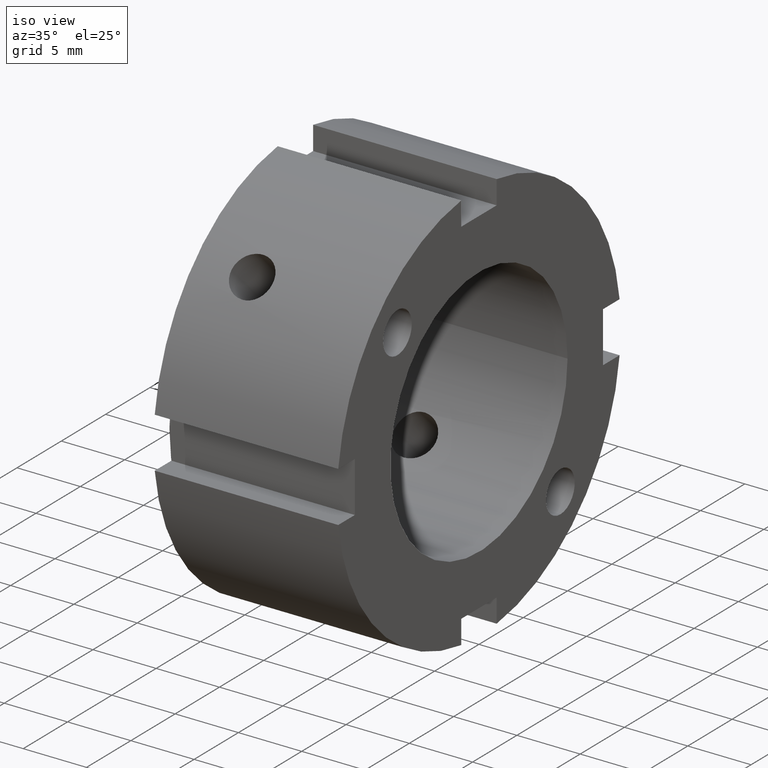
[diagram: clean part render]
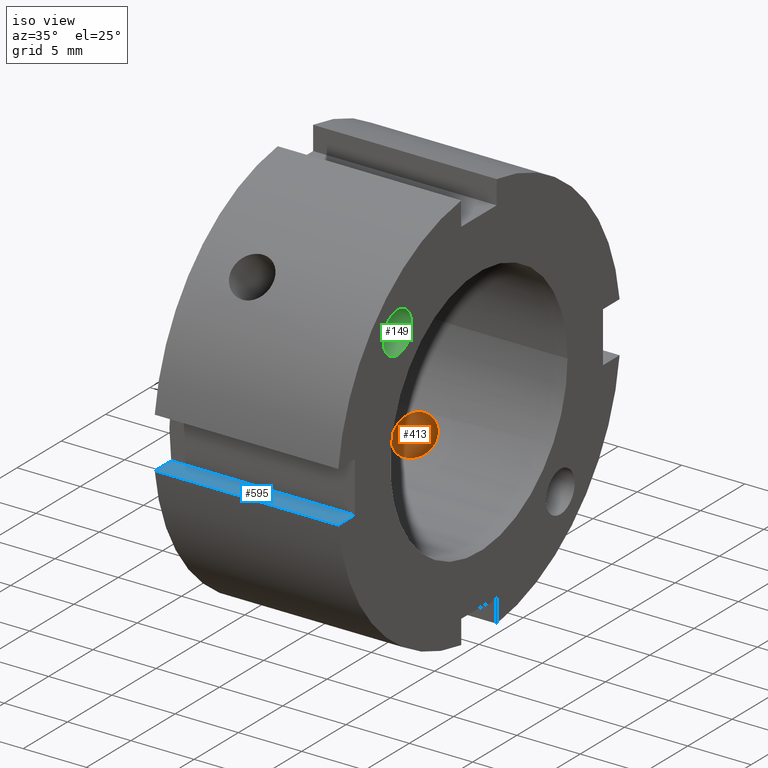
[diagram: same view with three faces highlighted in distinct colors, each labeled with its STEP entity id]
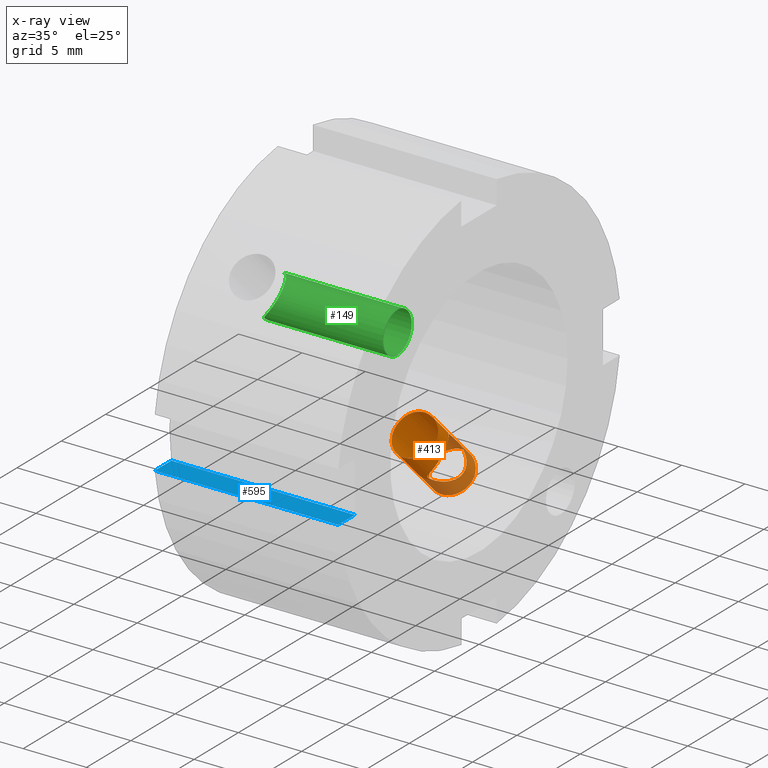
[diagram: x-ray of the same camera — body ghosted, the three highlighted faces saturated]
A machine part, iso view with three faces highlighted in distinct colors.
The next image is the same camera in x-ray (body ghosted, the three faces saturated) — at least one of them is partly hidden behind the body in this view.
Their STEP definitions:

[orange] entity #413 — the highlighted cylindrical surface (bore or boss wall) has radius 1.65 mm, axis along (0, -0.7071, 0.7071).
#246=CARTESIAN_POINT('',(5.307991883009919,10.338608247728512,-8.046168063121723));
#247=VERTEX_POINT('',#246);
#248=CARTESIAN_POINT('',(5.307991883009919,10.338608247728512,-8.046168063121723));
#249=CARTESIAN_POINT('',(5.307991883009919,10.290342137769326,-7.997901953162538));
#250=CARTESIAN_POINT('',(5.328608906915764,10.248867421248955,-7.961860960137659));
#251=CARTESIAN_POINT('',(5.379645951331562,10.167811954966764,-7.896666365945285));
#252=CARTESIAN_POINT('',(5.411230953491391,10.128496317576708,-7.868101955752572));
#253=CARTESIAN_POINT('',(5.515285602255861,10.006061582691961,-7.786979145157567));
#254=CARTESIAN_POINT('',(5.596034957619269,9.920186188864102,-7.740332786636991));
#255=CARTESIAN_POINT('',(5.850594408036052,9.63688703357367,-7.620070827574702));
#256=CARTESIAN_POINT('',(6.032903735948267,9.417864689002517,-7.571388155425116));
#257=CARTESIAN_POINT('',(6.312430421401476,9.008532071238733,-7.571388155425116));
#258=CARTESIAN_POINT('',(6.433314181594366,8.800213257153491,-7.6047462166001));
#259=CARTESIAN_POINT('',(6.560102959408969,8.498345314220897,-7.723498291297575));
#260=CARTESIAN_POINT('',(6.593607110198377,8.399313119949044,-7.774244746791153));
#261=CARTESIAN_POINT('',(6.638553059776974,8.212582298400816,-7.896225506185688));
#262=CARTESIAN_POINT('',(6.649999999999996,8.124881513565644,-7.967454612677805));
#263=CARTESIAN_POINT('',(6.649999999999996,7.967454612677813,-8.124881513565633));
#264=CARTESIAN_POINT('',(6.638553059776976,7.896225506185694,-8.212582298400807));
#265=CARTESIAN_POINT('',(6.59360711019838,7.774244746791156,-8.39931311994904));
#266=CARTESIAN_POINT('',(6.560102959408971,7.723498291297576,-8.49834531422089));
#267=CARTESIAN_POINT('',(6.433314181594367,7.6047462166001,-8.800213257153487));
#268=CARTESIAN_POINT('',(6.312430421401477,7.571388155425121,-9.008532071238731));
#269=CARTESIAN_POINT('',(6.032903735948269,7.571388155425121,-9.417864689002517));
#270=CARTESIAN_POINT('',(5.850594408036052,7.6200708275747,-9.63688703357367));
#271=CARTESIAN_POINT('',(5.596034957619269,7.74033278663699,-9.920186188864104));
#272=CARTESIAN_POINT('',(5.515285602255862,7.786979145157567,-10.006061582691963));
#273=CARTESIAN_POINT('',(5.411230953491396,7.868101955752572,-10.128496317576714));
#274=CARTESIAN_POINT('',(5.379645951331557,7.896666365945285,-10.167811954966764));
#275=CARTESIAN_POINT('',(5.32860890691576,7.961860960137659,-10.248867421248955));
#276=CARTESIAN_POINT('',(5.307991883009919,7.99790195316254,-10.290342137769326));
#277=CARTESIAN_POINT('',(5.307991883009919,8.094434173080908,-10.386874357687695));
#278=CARTESIAN_POINT('',(5.328608906915761,8.135908889601282,-10.422915350712579));
#279=CARTESIAN_POINT('',(5.379645951331562,8.216964355883473,-10.48810994490495));
#280=CARTESIAN_POINT('',(5.411230953491395,8.256279993273527,-10.516674355097662));
#281=CARTESIAN_POINT('',(5.515285602255863,8.378714728158275,-10.597797165692667));
#282=CARTESIAN_POINT('',(5.596034957619269,8.464590121986133,-10.644443524213244));
#283=CARTESIAN_POINT('',(5.850594408036052,8.747889277276567,-10.764705483275534));
#284=CARTESIAN_POINT('',(6.032903735948269,8.966911621847718,-10.81338815542512));
#285=CARTESIAN_POINT('',(6.312430421401476,9.376244239611504,-10.81338815542512));
#286=CARTESIAN_POINT('',(6.433314181594366,9.584563053696746,-10.780030094250135));
#287=CARTESIAN_POINT('',(6.560102959408971,9.886430996629342,-10.661278019552661));
#288=CARTESIAN_POINT('',(6.59360711019838,9.985463190901191,-10.61053156405908));
#289=CARTESIAN_POINT('',(6.638553059776977,10.172194012449422,-10.488550804664543));
#290=CARTESIAN_POINT('',(6.649999999999996,10.259894797284597,-10.417321698172426));
#291=CARTESIAN_POINT('',(6.649999999999996,10.417321698172426,-10.259894797284597));
#292=CARTESIAN_POINT('',(6.638553059776976,10.488550804664545,-10.172194012449424));
#293=CARTESIAN_POINT('',(6.593607110198379,10.610531564059082,-9.985463190901193));
#294=CARTESIAN_POINT('',(6.560102959408969,10.661278019552661,-9.88643099662934));
#295=CARTESIAN_POINT('',(6.433314181594364,10.780030094250137,-9.584563053696744));
#296=CARTESIAN_POINT('',(6.312430421401475,10.813388155425123,-9.376244239611502));
#297=CARTESIAN_POINT('',(6.032903735948265,10.813388155425123,-8.966911621847718));
#298=CARTESIAN_POINT('',(5.85059440803605,10.764705483275534,-8.747889277276567));
#299=CARTESIAN_POINT('',(5.596034957619269,10.644443524213241,-8.464590121986133));
#300=CARTESIAN_POINT('',(5.515285602255861,10.597797165692667,-8.378714728158274));
#301=CARTESIAN_POINT('',(5.411230953491392,10.516674355097662,-8.256279993273523));
#302=CARTESIAN_POINT('',(5.379645951331553,10.488109944904949,-8.216964355883471));
#303=CARTESIAN_POINT('',(5.328608906915758,10.422915350712575,-8.135908889601282));
#304=CARTESIAN_POINT('',(5.307991883009919,10.386874357687695,-8.094434173080908));
#305=CARTESIAN_POINT('',(5.307991883009919,10.338608247728512,-8.046168063121723));
#306=B_SPLINE_CURVE_WITH_KNOTS('',3,(#248,#249,#250,#251,#252,#253,#254,#255,#256,#257,#258,#259,#260,#261,#262,#263,#264,#265,#266,#267,#268,#269,#270,#271,#272,#273,#274,#275,#276,#277,#278,#279,#280,#281,#282,#283,#284,#285,#286,#287,#288,#289,#290,#291,#292,#293,#294,#295,#296,#297,#298,#299,#300,#301,#302,#303,#304,#305),.UNSPECIFIED.,.T.,.U.,(4,2,2,2,2,2,2,2,2,2,2,2,2,2,2,2,2,2,2,2,2,2,2,2,2,2,2,2,4),(0.0,0.020477576192181,0.040955152384362,0.081910304768724,0.163820609537448,0.230611187032827,0.264006475780517,0.297401764528207,0.330797053275897,0.364192342023587,0.430982919518967,0.512893224287691,0.553848376672053,0.574325952864234,0.594803529056415,0.615281105248596,0.635758681440777,0.676713833825139,0.758624138593863,0.825414716089243,0.858810004836933,0.892205293584623,0.925600582332313,0.958995871080003,1.025786448575383,1.107696753344106,1.148651905728468,1.169129481920649,1.18960705811283),.UNSPECIFIED.);
#307=EDGE_CURVE('',#247,#247,#306,.T.);
#323=CARTESIAN_POINT('',(4.999999999999996,33.473870406632095,-33.473870406632102));
#324=DIRECTION('',(0.0,-0.707106781186547,0.707106781186548));
#325=DIRECTION('',(1.0,0.0,0.0));
#326=AXIS2_PLACEMENT_3D('',#323,#324,#325);
#327=CYLINDRICAL_SURFACE('',#326,1.65);
#328=CARTESIAN_POINT('',(4.999999999999996,10.086662189659544,-12.420114567575148));
#329=VERTEX_POINT('',#328);
#330=CARTESIAN_POINT('',(4.999999999999995,10.086662189659542,-12.420114567575149));
#331=CARTESIAN_POINT('',(5.207336340367745,10.086662189659542,-12.420114567575149));
#332=CARTESIAN_POINT('',(5.428391306349065,10.119143696572163,-12.393953701340735));
#333=CARTESIAN_POINT('',(5.834873222145586,10.24964325502153,-12.286251284043519));
#334=CARTESIAN_POINT('',(6.020312800601859,10.347489254358727,-12.204549053884694));
#335=CARTESIAN_POINT('',(6.313139013345861,10.569687810686009,-12.012628808731058));
#336=CARTESIAN_POINT('',(6.440099224362882,10.708866685158767,-11.889556167077913));
#337=CARTESIAN_POINT('',(6.60853378446261,11.007648989030363,-11.613485061084404));
#338=CARTESIAN_POINT('',(6.649999999999996,11.167100131445411,-11.460316866524103));
#339=CARTESIAN_POINT('',(6.649999999999996,11.460316866524105,-11.167100131445409));
#340=CARTESIAN_POINT('',(6.608533784462606,11.6134850610844,-11.007648989030361));
#341=CARTESIAN_POINT('',(6.440099224362875,11.889556167077913,-10.708866685158764));
#342=CARTESIAN_POINT('',(6.313139013345861,12.01262880873106,-10.569687810686004));
#343=CARTESIAN_POINT('',(6.020312800601858,12.204549053884698,-10.347489254358724));
#344=CARTESIAN_POINT('',(5.83487322214558,12.286251284043519,-10.249643255021537));
#345=CARTESIAN_POINT('',(5.428391306349061,12.393953701340735,-10.11914369657217));
#346=CARTESIAN_POINT('',(5.207336340367746,12.420114567575151,-10.086662189659542));
#347=CARTESIAN_POINT('',(4.792663659632245,12.420114567575151,-10.086662189659542));
#348=CARTESIAN_POINT('',(4.57160869365093,12.393953701340735,-10.11914369657217));
#349=CARTESIAN_POINT('',(4.16512677785441,12.286251284043519,-10.249643255021537));
#350=CARTESIAN_POINT('',(3.979687199398133,12.204549053884698,-10.347489254358724));
#351=CARTESIAN_POINT('',(3.686860986654131,12.01262880873106,-10.569687810686004));
#352=CARTESIAN_POINT('',(3.559900775637115,11.889556167077913,-10.708866685158764));
#353=CARTESIAN_POINT('',(3.391466215537384,11.6134850610844,-11.007648989030361));
#354=CARTESIAN_POINT('',(3.349999999999995,11.460316866524105,-11.167100131445409));
#355=CARTESIAN_POINT('',(3.349999999999994,11.167100131445409,-11.460316866524103));
#356=CARTESIAN_POINT('',(3.391466215537382,11.007648989030363,-11.613485061084404));
#357=CARTESIAN_POINT('',(3.55990077563711,10.708866685158767,-11.889556167077913));
#358=CARTESIAN_POINT('',(3.68686098665413,10.569687810686009,-12.012628808731058));
#359=CARTESIAN_POINT('',(3.979687199398131,10.347489254358727,-12.204549053884694));
#360=CARTESIAN_POINT('',(4.165126777854406,10.249643255021535,-12.286251284043519));
#361=CARTESIAN_POINT('',(4.571608693650925,10.119143696572166,-12.393953701340735));
#362=CARTESIAN_POINT('',(4.792663659632244,10.086662189659542,-12.420114567575149));
#363=CARTESIAN_POINT('',(4.999999999999996,10.086662189659542,-12.420114567575149));
#364=B_SPLINE_CURVE_WITH_KNOTS('',3,(#330,#331,#332,#333,#334,#335,#336,#337,#338,#339,#340,#341,#342,#343,#344,#345,#346,#347,#348,#349,#350,#351,#352,#353,#354,#355,#356,#357,#358,#359,#360,#361,#362,#363),.UNSPECIFIED.,.T.,.U.,(4,2,2,2,2,2,2,2,2,2,2,2,2,2,2,2,4),(0.0,0.062200902110325,0.124401804220651,0.186602466740108,0.248803129259565,0.311003791779022,0.373204454298479,0.435405356408804,0.497606258519129,0.559807160629455,0.62200806273978,0.684208725259237,0.746409387778694,0.808610050298151,0.870810712817608,0.933011614927933,0.995212517038259),.UNSPECIFIED.);
#365=EDGE_CURVE('',#329,#329,#364,.T.);
#366=ORIENTED_EDGE('',*,*,#365,.F.);
#367=EDGE_LOOP('',(#366));
#368=FACE_OUTER_BOUND('',#367,.T.);
#369=ORIENTED_EDGE('',*,*,#307,.T.);
#370=EDGE_LOOP('',(#369));
#371=FACE_BOUND('',#370,.T.);
#372=CARTESIAN_POINT('',(4.999999999999996,5.807422504610465,-8.140874882526072));
#373=VERTEX_POINT('',#372);
#374=CARTESIAN_POINT('',(4.999999999999996,5.807422504610465,-8.140874882526074));
#375=CARTESIAN_POINT('',(4.792411222579398,5.807422504610465,-8.140874882526074));
#376=CARTESIAN_POINT('',(4.571250491954108,5.841926613010421,-8.116597860312625));
#377=CARTESIAN_POINT('',(4.164840215392741,5.979453336035387,-8.015822172041416));
#378=CARTESIAN_POINT('',(3.979557419361278,6.082185930628075,-7.939062193465802));
#379=CARTESIAN_POINT('',(3.686993953867931,6.313362002306713,-7.756491044388874));
#380=CARTESIAN_POINT('',(3.560070595837439,6.45728659562388,-7.638383916018901));
#381=CARTESIAN_POINT('',(3.391563208071005,6.762863398406577,-7.369201970303277));
#382=CARTESIAN_POINT('',(3.349999999999995,6.924284143717506,-7.217851480013444));
#383=CARTESIAN_POINT('',(3.349999999999995,7.217851480013444,-6.924284143717507));
#384=CARTESIAN_POINT('',(3.391563208071004,7.369201970303275,-6.762863398406578));
#385=CARTESIAN_POINT('',(3.560070595837439,7.638383916018898,-6.457286595623881));
#386=CARTESIAN_POINT('',(3.68699395386793,7.756491044388874,-6.313362002306713));
#387=CARTESIAN_POINT('',(3.979557419361277,7.9390621934658,-6.082185930628077));
#388=CARTESIAN_POINT('',(4.164840215392742,8.015822172041411,-5.979453336035392));
#389=CARTESIAN_POINT('',(4.57125049195411,8.116597860312622,-5.841926613010426));
#390=CARTESIAN_POINT('',(4.792411222579397,8.140874882526072,-5.807422504610468));
#391=CARTESIAN_POINT('',(5.207588777420593,8.140874882526072,-5.807422504610468));
#392=CARTESIAN_POINT('',(5.428749508045883,8.116597860312622,-5.841926613010426));
#393=CARTESIAN_POINT('',(5.835159784607249,8.015822172041411,-5.979453336035392));
#394=CARTESIAN_POINT('',(6.020442580638714,7.9390621934658,-6.082185930628077));
#395=CARTESIAN_POINT('',(6.313006046132061,7.756491044388874,-6.313362002306713));
#396=CARTESIAN_POINT('',(6.439929404162552,7.638383916018898,-6.457286595623881));
#397=CARTESIAN_POINT('',(6.608436791928987,7.369201970303275,-6.762863398406578));
#398=CARTESIAN_POINT('',(6.649999999999996,7.217851480013444,-6.924284143717506));
#399=CARTESIAN_POINT('',(6.649999999999996,6.924284143717506,-7.217851480013444));
#400=CARTESIAN_POINT('',(6.608436791928987,6.762863398406577,-7.369201970303276));
#401=CARTESIAN_POINT('',(6.439929404162552,6.45728659562388,-7.638383916018898));
#402=CARTESIAN_POINT('',(6.313006046132061,6.313362002306713,-7.756491044388874));
#403=CARTESIAN_POINT('',(6.020442580638714,6.082185930628075,-7.939062193465802));
#404=CARTESIAN_POINT('',(5.83515978460725,5.979453336035388,-8.015822172041414));
#405=CARTESIAN_POINT('',(5.428749508045883,5.841926613010423,-8.116597860312625));
#406=CARTESIAN_POINT('',(5.207588777420593,5.807422504610465,-8.140874882526074));
#407=CARTESIAN_POINT('',(4.999999999999996,5.807422504610465,-8.140874882526074));
#408=B_SPLINE_CURVE_WITH_KNOTS('',3,(#374,#375,#376,#377,#378,#379,#380,#381,#382,#383,#384,#385,#386,#387,#388,#389,#390,#391,#392,#393,#394,#395,#396,#397,#398,#399,#400,#401,#402,#403,#404,#405,#406,#407),.UNSPECIFIED.,.T.,.U.,(4,2,2,2,2,2,2,2,2,2,2,2,2,2,2,2,4),(0.0,0.062276633226179,0.124553266452359,0.186828302721278,0.249103338990197,0.311378375259115,0.373653411528034,0.435930044754214,0.498206677980393,0.560483311206572,0.622759944432752,0.685034980701671,0.74731001697059,0.809585053239509,0.871860089508427,0.934136722734607,0.996413355960786),.UNSPECIFIED.);
#409=EDGE_CURVE('',#373,#373,#408,.T.);
#410=ORIENTED_EDGE('',*,*,#409,.F.);
#411=EDGE_LOOP('',(#410));
#412=FACE_BOUND('',#411,.T.);
#413=ADVANCED_FACE('',(#368,#371,#412),#327,.F.);

[blue] entity #595 — the highlighted planar face has unit normal (0, 0, -1).
#556=CARTESIAN_POINT('',(14.999999999999996,-15.999999999999996,-1.999999999999997));
#557=DIRECTION('',(0.0,0.0,-1.0));
#558=DIRECTION('',(1.0,0.0,0.0));
#559=AXIS2_PLACEMENT_3D('',#556,#557,#558);
#560=PLANE('',#559);
#561=CARTESIAN_POINT('',(0.499999999999998,-15.874507866387539,-1.999999999999997));
#562=VERTEX_POINT('',#561);
#563=CARTESIAN_POINT('',(0.499999999999998,-13.999999999999996,-1.999999999999998));
#564=VERTEX_POINT('',#563);
#565=CARTESIAN_POINT('',(0.499999999999998,-15.874507866387539,-1.999999999999997));
#566=DIRECTION('',(0.0,1.0,0.0));
#567=VECTOR('',#566,1.874507866387543);
#568=LINE('',#565,#567);
#569=EDGE_CURVE('',#562,#564,#568,.T.);
#570=ORIENTED_EDGE('',*,*,#569,.F.);
#571=CARTESIAN_POINT('',(14.999999999999996,-15.874507866387539,-1.999999999999997));
#572=VERTEX_POINT('',#571);
#573=CARTESIAN_POINT('',(14.999999999999996,-15.874507866387539,-1.999999999999998));
#574=DIRECTION('',(-1.0,0.0,0.0));
#575=VECTOR('',#574,14.499999999999998);
#576=LINE('',#573,#575);
#577=EDGE_CURVE('',#572,#562,#576,.T.);
#578=ORIENTED_EDGE('',*,*,#577,.F.);
#579=CARTESIAN_POINT('',(14.999999999999996,-13.999999999999996,-1.999999999999998));
#580=VERTEX_POINT('',#579);
#581=CARTESIAN_POINT('',(14.999999999999996,-13.999999999999998,-1.999999999999998));
#582=DIRECTION('',(0.0,-1.0,0.0));
#583=VECTOR('',#582,1.874507866387543);
#584=LINE('',#581,#583);
#585=EDGE_CURVE('',#580,#572,#584,.T.);
#586=ORIENTED_EDGE('',*,*,#585,.F.);
#587=CARTESIAN_POINT('',(14.999999999999996,-13.999999999999996,-1.999999999999998));
#588=DIRECTION('',(-1.0,0.0,0.0));
#589=VECTOR('',#588,14.499999999999996);
#590=LINE('',#587,#589);
#591=EDGE_CURVE('',#580,#564,#590,.T.);
#592=ORIENTED_EDGE('',*,*,#591,.T.);
#593=EDGE_LOOP('',(#570,#578,#586,#592));
#594=FACE_OUTER_BOUND('',#593,.T.);
#595=ADVANCED_FACE('',(#594),#560,.F.);

[green] entity #149 — the highlighted cylindrical surface (bore or boss wall) has radius 1.621 mm, axis along (-1, 0, 0).
#68=CARTESIAN_POINT('',(9.999999999999996,-9.192388155425116,9.192388155425119));
#69=DIRECTION('',(-1.0,0.0,0.0));
#70=DIRECTION('',(0.0,-1.0,0.0));
#71=AXIS2_PLACEMENT_3D('',#68,#69,#70);
#72=CYLINDRICAL_SURFACE('',#71,1.621);
#73=CARTESIAN_POINT('',(14.999999999999996,-10.813388155425116,9.192388155425119));
#74=VERTEX_POINT('',#73);
#75=CARTESIAN_POINT('',(14.999999999999996,-9.192388155425116,9.192388155425119));
#76=DIRECTION('',(-1.0,0.0,0.0));
#77=DIRECTION('',(0.0,-1.0,0.0));
#78=AXIS2_PLACEMENT_3D('',#75,#76,#77);
#79=CIRCLE('',#78,1.621);
#80=EDGE_CURVE('',#74,#74,#79,.T.);
#81=ORIENTED_EDGE('',*,*,#80,.F.);
#82=EDGE_LOOP('',(#81));
#83=FACE_OUTER_BOUND('',#82,.T.);
#84=CARTESIAN_POINT('',(5.307991883009919,-8.046168063121721,10.338608247728514));
#85=VERTEX_POINT('',#84);
#86=CARTESIAN_POINT('',(5.307991883009937,-8.046168063121721,10.338608247728514));
#87=CARTESIAN_POINT('',(5.307991883009937,-8.094434173080906,10.386874357687699));
#88=CARTESIAN_POINT('',(5.328608906915768,-8.135908889601279,10.422915350712579));
#89=CARTESIAN_POINT('',(5.379645951331566,-8.216964355883469,10.48810994490495));
#90=CARTESIAN_POINT('',(5.411230953491395,-8.256279993273525,10.516674355097663));
#91=CARTESIAN_POINT('',(5.515285602255865,-8.378714728158274,10.597797165692668));
#92=CARTESIAN_POINT('',(5.596034957619271,-8.464590121986131,10.644443524213248));
#93=CARTESIAN_POINT('',(5.850594408036054,-8.747889277276567,10.764705483275536));
#94=CARTESIAN_POINT('',(6.032903735948272,-8.96691162184772,10.813388155425121));
#95=CARTESIAN_POINT('',(6.31243042140148,-9.376244239611504,10.813388155425121));
#96=CARTESIAN_POINT('',(6.433314181594366,-9.584563053696748,10.780030094250137));
#97=CARTESIAN_POINT('',(6.560102959408971,-9.886430996629343,10.661278019552663));
#98=CARTESIAN_POINT('',(6.59360711019838,-9.985463190901193,10.610531564059082));
#99=CARTESIAN_POINT('',(6.638553059776977,-10.172194012449424,10.488550804664545));
#100=CARTESIAN_POINT('',(6.649999999999996,-10.259894797284598,10.417321698172428));
#101=CARTESIAN_POINT('',(6.649999999999996,-10.417321698172428,10.259894797284598));
#102=CARTESIAN_POINT('',(6.638553059776977,-10.488550804664543,10.172194012449427));
#103=CARTESIAN_POINT('',(6.59360711019838,-10.610531564059078,9.985463190901195));
#104=CARTESIAN_POINT('',(6.560102959408969,-10.661278019552658,9.886430996629343));
#105=CARTESIAN_POINT('',(6.433314181594366,-10.780030094250133,9.584563053696748));
#106=CARTESIAN_POINT('',(6.312430421401476,-10.813388155425116,9.376244239611504));
#107=CARTESIAN_POINT('',(6.032903735948269,-10.813388155425116,8.96691162184772));
#108=CARTESIAN_POINT('',(5.850594408036053,-10.764705483275531,8.74788927727657));
#109=CARTESIAN_POINT('',(5.596034957619269,-10.644443524213242,8.464590121986134));
#110=CARTESIAN_POINT('',(5.515285602255861,-10.597797165692665,8.378714728158275));
#111=CARTESIAN_POINT('',(5.411230953491392,-10.51667435509766,8.256279993273525));
#112=CARTESIAN_POINT('',(5.379645951331561,-10.488109944904949,8.216964355883473));
#113=CARTESIAN_POINT('',(5.328608906915761,-10.422915350712575,8.135908889601286));
#114=CARTESIAN_POINT('',(5.307991883009919,-10.386874357687695,8.094434173080911));
#115=CARTESIAN_POINT('',(5.307991883009919,-10.290342137769324,7.997901953162542));
#116=CARTESIAN_POINT('',(5.32860890691576,-10.248867421248953,7.961860960137662));
#117=CARTESIAN_POINT('',(5.379645951331557,-10.167811954966762,7.896666365945286));
#118=CARTESIAN_POINT('',(5.411230953491396,-10.128496317576712,7.868101955752574));
#119=CARTESIAN_POINT('',(5.515285602255862,-10.006061582691961,7.786979145157568));
#120=CARTESIAN_POINT('',(5.596034957619269,-9.920186188864102,7.740332786636992));
#121=CARTESIAN_POINT('',(5.850594408036052,-9.636887033573668,7.620070827574703));
#122=CARTESIAN_POINT('',(6.032903735948269,-9.417864689002515,7.571388155425122));
#123=CARTESIAN_POINT('',(6.312430421401477,-9.008532071238729,7.571388155425122));
#124=CARTESIAN_POINT('',(6.433314181594367,-8.800213257153486,7.604746216600102));
#125=CARTESIAN_POINT('',(6.560102959408971,-8.498345314220888,7.723498291297578));
#126=CARTESIAN_POINT('',(6.59360711019838,-8.399313119949039,7.774244746791156));
#127=CARTESIAN_POINT('',(6.638553059776976,-8.212582298400806,7.896225506185695));
#128=CARTESIAN_POINT('',(6.649999999999996,-8.124881513565631,7.967454612677816));
#129=CARTESIAN_POINT('',(6.649999999999996,-7.967454612677804,8.124881513565645));
#130=CARTESIAN_POINT('',(6.638553059776974,-7.896225506185686,8.212582298400816));
#131=CARTESIAN_POINT('',(6.593607110198377,-7.77424474679115,8.399313119949047));
#132=CARTESIAN_POINT('',(6.560102959408969,-7.723498291297572,8.498345314220897));
#133=CARTESIAN_POINT('',(6.433314181594366,-7.604746216600098,8.800213257153493));
#134=CARTESIAN_POINT('',(6.312430421401476,-7.571388155425114,9.008532071238735));
#135=CARTESIAN_POINT('',(6.032903735948267,-7.571388155425114,9.417864689002521));
#136=CARTESIAN_POINT('',(5.850594408036054,-7.6200708275747,9.636887033573672));
#137=CARTESIAN_POINT('',(5.596034957619269,-7.740332786636989,9.920186188864106));
#138=CARTESIAN_POINT('',(5.515285602255861,-7.786979145157566,10.006061582691963));
#139=CARTESIAN_POINT('',(5.411230953491391,-7.868101955752569,10.12849631757671));
#140=CARTESIAN_POINT('',(5.379645951331562,-7.896666365945282,10.167811954966766));
#141=CARTESIAN_POINT('',(5.328608906915764,-7.961860960137656,10.248867421248956));
#142=CARTESIAN_POINT('',(5.307991883009937,-7.997901953162537,10.290342137769329));
#143=CARTESIAN_POINT('',(5.307991883009937,-8.046168063121721,10.338608247728514));
#144=B_SPLINE_CURVE_WITH_KNOTS('',3,(#86,#87,#88,#89,#90,#91,#92,#93,#94,#95,#96,#97,#98,#99,#100,#101,#102,#103,#104,#105,#106,#107,#108,#109,#110,#111,#112,#113,#114,#115,#116,#117,#118,#119,#120,#121,#122,#123,#124,#125,#126,#127,#128,#129,#130,#131,#132,#133,#134,#135,#136,#137,#138,#139,#140,#141,#142,#143),.UNSPECIFIED.,.T.,.U.,(4,2,2,2,2,2,2,2,2,2,2,2,2,2,2,2,2,2,2,2,2,2,2,2,2,2,2,2,4),(0.0,0.020477576192181,0.040955152384362,0.081910304768724,0.163820609537448,0.230611187032828,0.264006475780518,0.297401764528208,0.330797053275898,0.364192342023588,0.430982919518968,0.512893224287692,0.553848376672054,0.574325952864235,0.594803529056416,0.615281105248596,0.635758681440777,0.676713833825139,0.758624138593863,0.825414716089243,0.858810004836934,0.892205293584624,0.925600582332313,0.958995871080003,1.025786448575383,1.107696753344107,1.148651905728469,1.16912948192065,1.189607058112831),.UNSPECIFIED.);
#145=EDGE_CURVE('',#85,#85,#144,.T.);
#146=ORIENTED_EDGE('',*,*,#145,.F.);
#147=EDGE_LOOP('',(#146));
#148=FACE_BOUND('',#147,.T.);
#149=ADVANCED_FACE('',(#83,#148),#72,.F.);